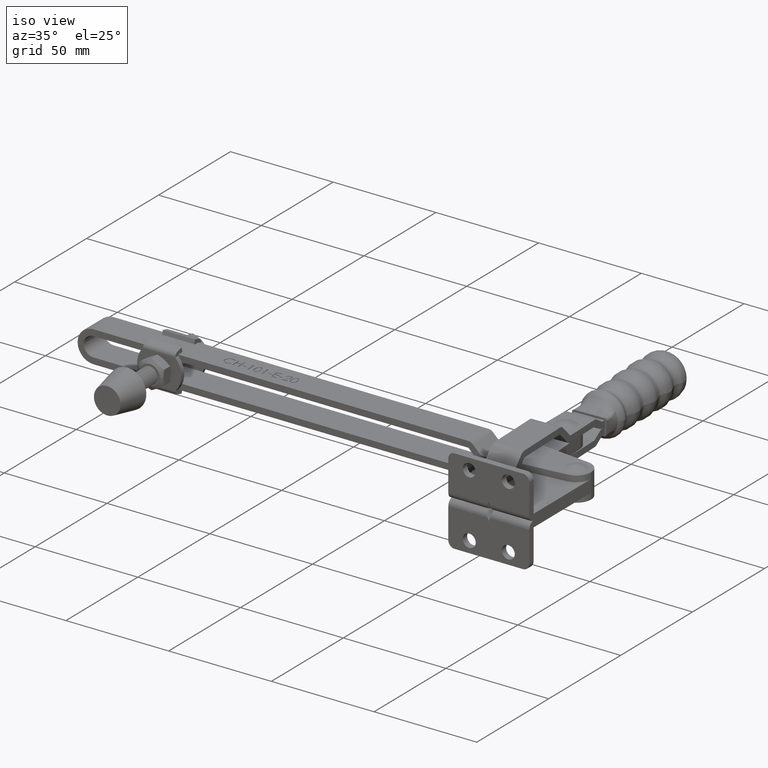
[diagram: clean part render]
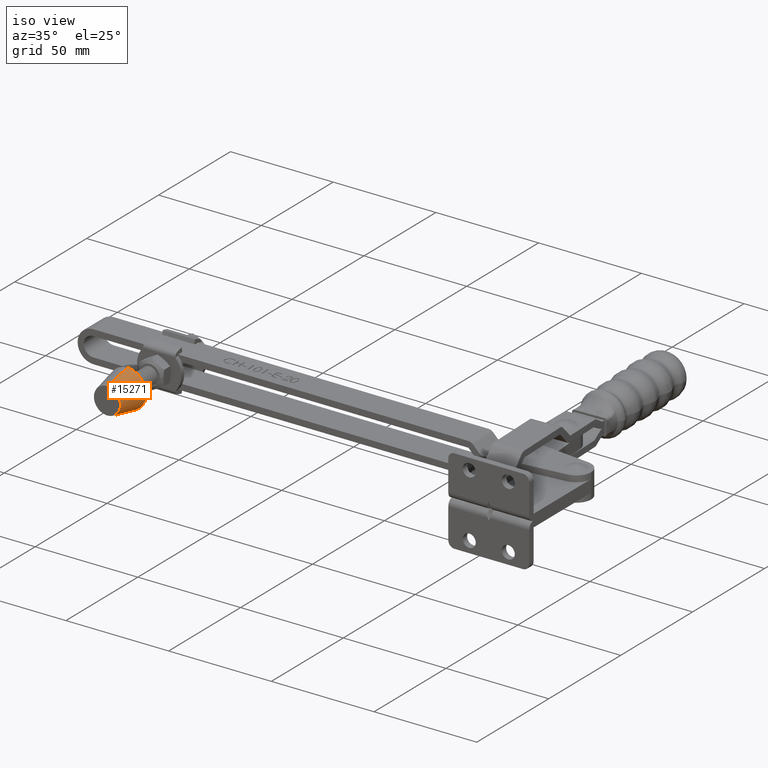
[diagram: same view with one face highlighted and labeled with its STEP entity id]
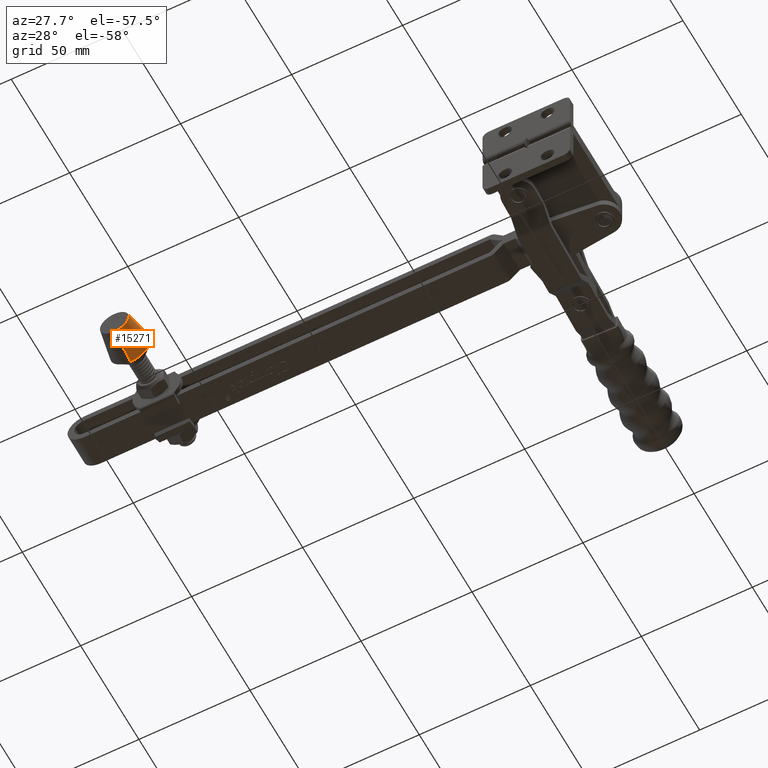
[diagram: same view with one face highlighted and labeled with its STEP entity id]
A machine part, iso view. The second image highlights one B-rep face of the part: STEP entity #15271.
A second angle (auxiliary view) of the same face is appended — the face is thin or edge-on in the first view.
In plain terms, the highlighted conical surface has half-angle 11.113 deg.
Its self-contained STEP definition (entity closure, byte-faithful):
#10500 = CARTESIAN_POINT ( 'NONE',  ( 0.0000000000000000000, 6.476300976980058800E-014, 5.499999999999955600 ) ) ;
#10501 = DIRECTION ( 'NONE',  ( -0.0000000000000000000, 4.625929269271484500E-015, 1.000000000000000000 ) ) ;
#10502 = DIRECTION ( 'NONE',  ( 0.0000000000000000000, -1.000000000000000000, 4.594672990425022900E-015 ) ) ;
#10503 = DIRECTION ( 'NONE',  ( -0.0000000000000000000, 4.625929269271484500E-015, 1.000000000000000000 ) ) ;
#10504 = CARTESIAN_POINT ( 'NONE',  ( 0.0000000000000000000, 6.476300976980058800E-014, 5.499999999999955600 ) ) ;
#10505 = CARTESIAN_POINT ( 'NONE',  ( 0.0000000000000000000, -6.500000000000000900, -8.500000000000001800 ) ) ;
#10506 = CIRCLE ( 'NONE', #10549, 6.500000000000000900 ) ;
#10515 = CIRCLE ( 'NONE', #10519, 9.250000000000067500 ) ;
#10519 = AXIS2_PLACEMENT_3D ( 'NONE', #10504, #10503, #10502 ) ;
#10530 = AXIS2_PLACEMENT_3D ( 'NONE', #10500, #10501, #10575 ) ;
#10531 = CARTESIAN_POINT ( 'NONE',  ( 1.132798289211310000E-015, -9.250000000000007100, 5.499999999999998200 ) ) ;
#10541 = FACE_OUTER_BOUND ( 'NONE', #15272, .T. ) ;
#10542 = CARTESIAN_POINT ( 'NONE',  ( 9.644093543285448100E-016, 6.500000000000000900, -8.500000000000062200 ) ) ;
#10544 = CONICAL_SURFACE ( 'NONE', #10530, 9.250000000000067500, 0.1939591472598978500 ) ;
#10546 = DIRECTION ( 'NONE',  ( 0.0000000000000000000, -1.000000000000000000, 4.536969091016264500E-015 ) ) ;
#10547 = DIRECTION ( 'NONE',  ( -0.0000000000000000000, 4.625929269271484500E-015, 1.000000000000000000 ) ) ;
#10548 = CARTESIAN_POINT ( 'NONE',  ( 0.0000000000000000000, -1.355854680848614000E-028, -8.500000000000032000 ) ) ;
#10549 = AXIS2_PLACEMENT_3D ( 'NONE', #10548, #10547, #10546 ) ;
#10551 = CARTESIAN_POINT ( 'NONE',  ( 0.0000000000000000000, 9.250000000000131500, 5.499999999999913000 ) ) ;
#10552 = DIRECTION ( 'NONE',  ( 2.360449196321649300E-017, 0.1927453040309370600, 0.9812488205210855300 ) ) ;
#10553 = VECTOR ( 'NONE', #10552, 1000.000000000000100 ) ;
#10554 = CARTESIAN_POINT ( 'NONE',  ( 1.132798289211310000E-015, 9.250000000000131500, 5.499999999999913000 ) ) ;
#10555 = LINE ( 'NONE', #10554, #10553 ) ;
#10575 = DIRECTION ( 'NONE',  ( 0.0000000000000000000, -1.000000000000000000, 4.594672990425022900E-015 ) ) ;
#10683 = DIRECTION ( 'NONE',  ( 0.0000000000000000000, -0.1927453040309279900, 0.9812488205210874200 ) ) ;
#10684 = VECTOR ( 'NONE', #10683, 1000.000000000000000 ) ;
#10685 = CARTESIAN_POINT ( 'NONE',  ( 0.0000000000000000000, -9.250000000000003600, 5.499999999999998200 ) ) ;
#10686 = LINE ( 'NONE', #10685, #10684 ) ;
#15261 = EDGE_CURVE ( 'NONE', #15273, #15265, #10515, .T. ) ;
#15263 = EDGE_CURVE ( 'NONE', #15270, #15265, #10555, .T. ) ;
#15265 = VERTEX_POINT ( 'NONE', #10551 ) ;
#15266 = EDGE_CURVE ( 'NONE', #15269, #15270, #10506, .T. ) ;
#15269 = VERTEX_POINT ( 'NONE', #10505 ) ;
#15270 = VERTEX_POINT ( 'NONE', #10542 ) ;
#15271 = ADVANCED_FACE ( 'NONE', ( #10541 ), #10544, .T. ) ;
#15272 = EDGE_LOOP ( 'NONE', ( #15274, #15276, #15325, #15328 ) ) ;
#15273 = VERTEX_POINT ( 'NONE', #10531 ) ;
#15274 = ORIENTED_EDGE ( 'NONE', *, *, #15266, .T. ) ;
#15276 = ORIENTED_EDGE ( 'NONE', *, *, #15263, .T. ) ;
#15325 = ORIENTED_EDGE ( 'NONE', *, *, #15261, .F. ) ;
#15326 = EDGE_CURVE ( 'NONE', #15269, #15273, #10686, .T. ) ;
#15328 = ORIENTED_EDGE ( 'NONE', *, *, #15326, .F. ) ;